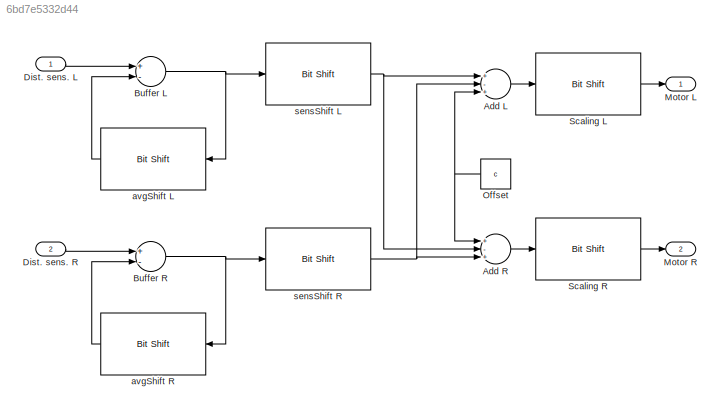
MODEL slx_6bd7e5332d44
KIND model
CONFIG AbsTol = auto
CONFIG EnableMultiTasking = off
CONFIG FixedStep = auto
CONFIG MaxStep = auto
CONFIG MinStep = auto
CONFIG RelTol = 1e-3
CONFIG SampleTimeConstraint = Unconstrained
CONFIG Solver = VariableStepAuto
CONFIG SolverName = VariableStepAuto
CONFIG StartTime = 0.0
CONFIG StopTime = 10.0
BLOCK [Sum] Add L
  InputSameDT = off
  Inputs = +-+
  OutDataTypeStr = Inherit: Inherit via internal rule
  Ports = [3, 1]
  SaturateOnIntegerOverflow = off
BLOCK [Sum] Add R
  InputSameDT = off
  Inputs = +-+
  OutDataTypeStr = Inherit: Inherit via internal rule
  Ports = [3, 1]
  SaturateOnIntegerOverflow = off
BLOCK [Sum] Buffer L
  InputSameDT = off
  Inputs = +-
  OutDataTypeStr = Inherit: Inherit via internal rule
  Ports = [2, 1]
  SaturateOnIntegerOverflow = off
BLOCK [Sum] Buffer R 
  InputSameDT = off
  Inputs = +-
  OutDataTypeStr = Inherit: Inherit via internal rule
  Ports = [2, 1]
  SaturateOnIntegerOverflow = off
BLOCK [Inport] Dist. sens. L
  IconDisplay = Port number
BLOCK [Inport] Dist. sens. R
  IconDisplay = Port number
  Port = 2
BLOCK [Outport] Motor L
  IconDisplay = Port number
BLOCK [Outport] Motor R
  IconDisplay = Port number
  Port = 2
BLOCK [Constant] Offset
  Value = c
BLOCK [Reference] Scaling L  REF=hdlsllib/HDL Operations/Bit Shift
  Ports = [1, 1]
  SourceBlock = hdlsllib/HDL Operations/Bit Shift
  SourceType = Bit Shift
BLOCK [Reference] Scaling R  REF=hdlsllib/HDL Operations/Bit Shift
  Ports = [1, 1]
  SourceBlock = hdlsllib/HDL Operations/Bit Shift
  SourceType = Bit Shift
BLOCK [Reference] avgShift L   REF=hdlsllib/HDL Operations/Bit Shift
  Ports = [1, 1]
  SourceBlock = hdlsllib/HDL Operations/Bit Shift
  SourceType = Bit Shift
BLOCK [Reference] avgShift R  REF=hdlsllib/HDL Operations/Bit Shift
  Ports = [1, 1]
  SourceBlock = hdlsllib/HDL Operations/Bit Shift
  SourceType = Bit Shift
BLOCK [Reference] sensShift L  REF=hdlsllib/HDL Operations/Bit Shift
  Ports = [1, 1]
  SourceBlock = hdlsllib/HDL Operations/Bit Shift
  SourceType = Bit Shift
BLOCK [Reference] sensShift R  REF=hdlsllib/HDL Operations/Bit Shift
  Ports = [1, 1]
  SourceBlock = hdlsllib/HDL Operations/Bit Shift
  SourceType = Bit Shift
LINE Add L:1 -> Scaling L:1
LINE Add R:1 -> Scaling R:1
NET Buffer L:1 -> avgShift L :1, sensShift L:1
NET Buffer R :1 -> avgShift R:1, sensShift R:1
LINE Dist. sens. L:1 -> Buffer L:1
LINE Dist. sens. R:1 -> Buffer R :1
NET Offset:1 -> Add L:3, Add R:1
LINE Scaling L:1 -> Motor L:1
LINE Scaling R:1 -> Motor R:1
LINE avgShift L :1 -> Buffer L:2
LINE avgShift R:1 -> Buffer R :2
NET sensShift L:1 -> Add L:1, Add R:2
NET sensShift R:1 -> Add L:2, Add R:3
note: NET lines group one-source signal fan-out (src -> all destinations, sorted); 1:1 wires keep LINE
